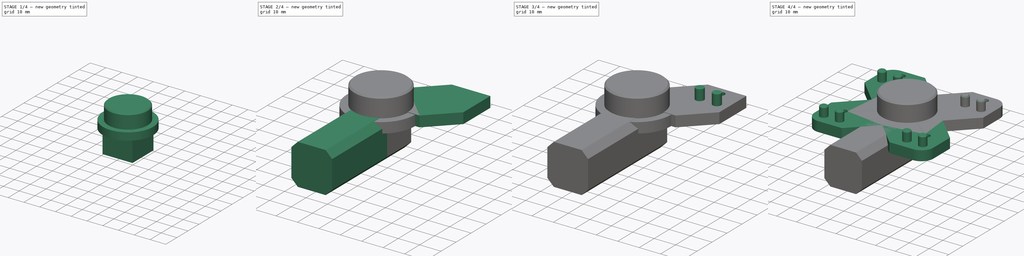
[diagram: build sequence overview — one tinted view per stage of 4, left to right]
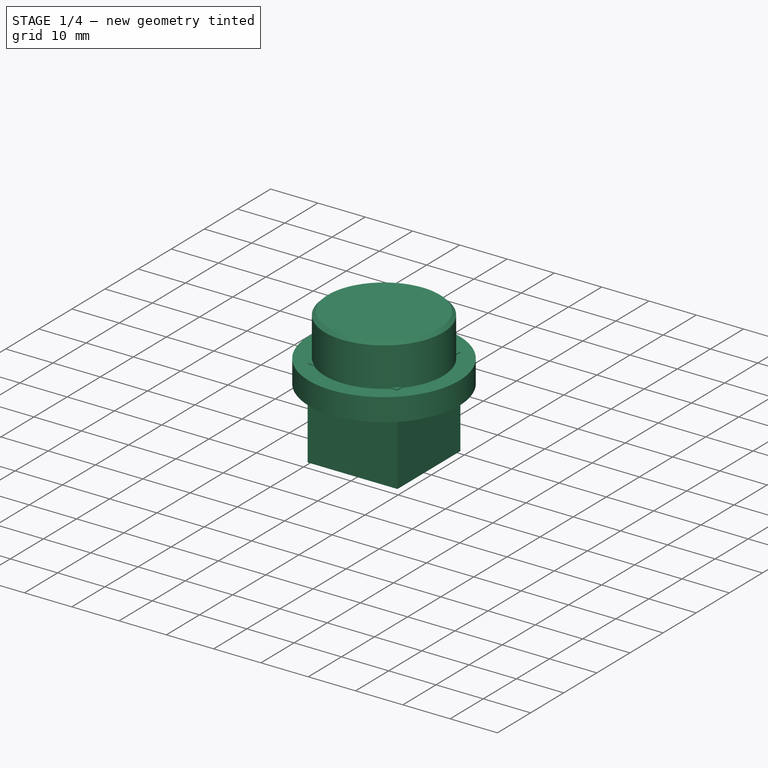
[diagram: stage 1 of 4 — iso view after this stage's code; geometry added in this stage tinted green]
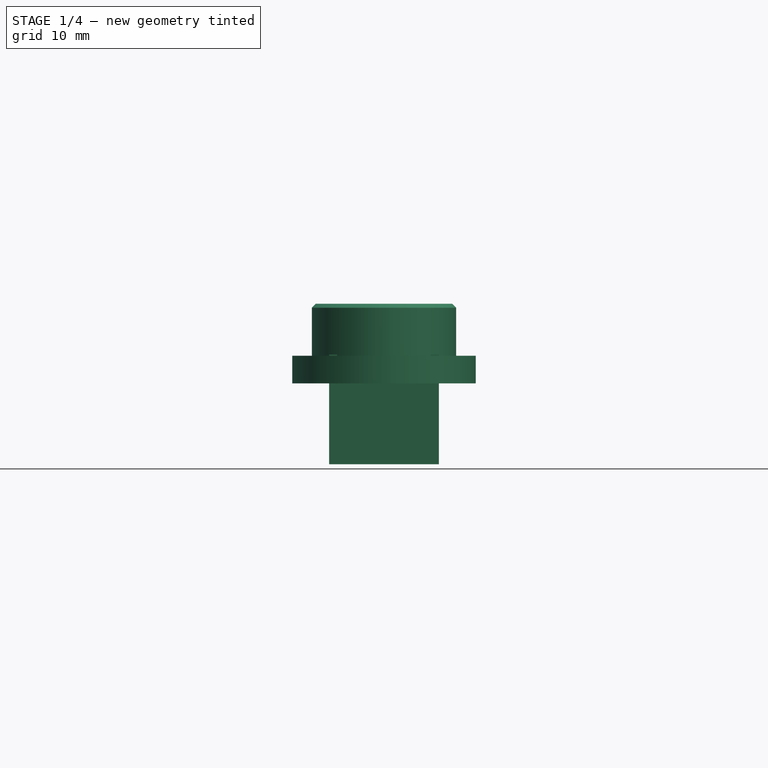
[diagram: stage 1 of 4 — front view after this stage's code; geometry added in this stage tinted green]
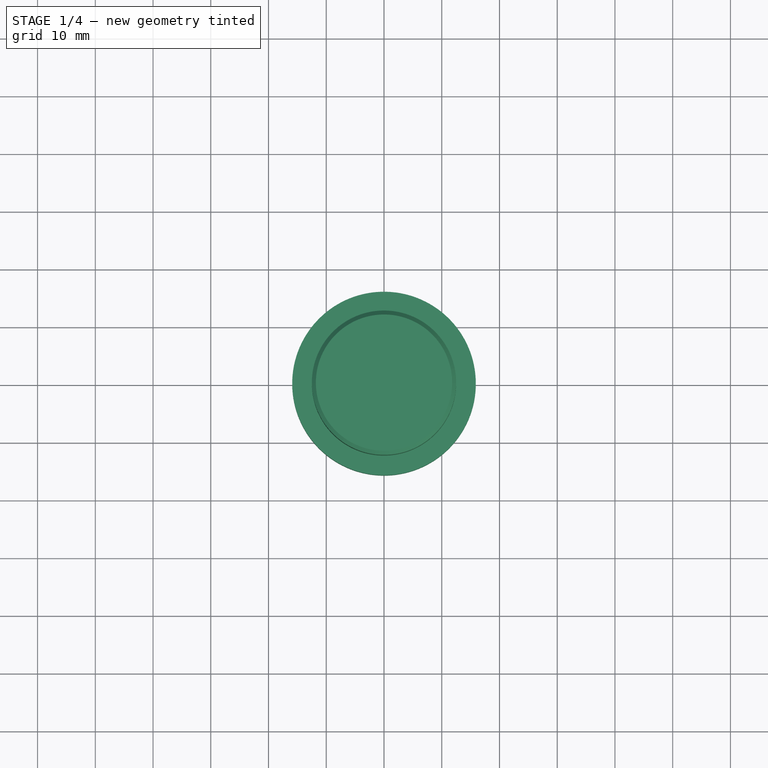
[diagram: stage 1 of 4 — top view after this stage's code; geometry added in this stage tinted green]
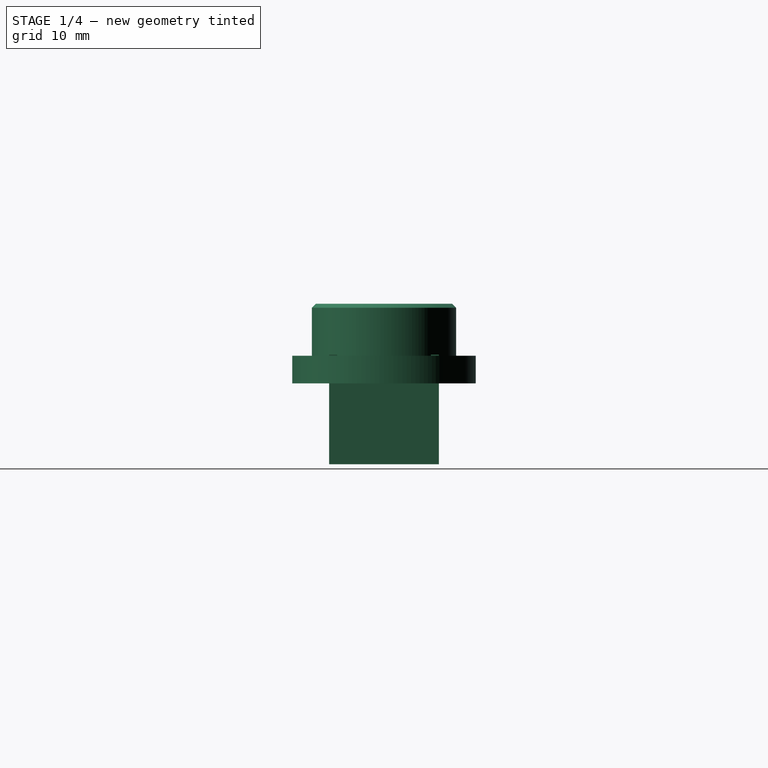
[diagram: stage 1 of 4 — right view after this stage's code; geometry added in this stage tinted green]
FCSTD DOCUMENT  (FreeCAD 0.19R)
Label: quad_cam_connector
License: All rights reserved
LicenseURL: http://en.wikipedia.org/wiki/All_rights_reserved
objects: Sketcher::SketchObject×7, PartDesign::Pad×6, PartDesign::Chamfer×3, PartDesign::Body×3, PartDesign::LinearPattern×2, PartDesign::Hole×1, PartDesign::Pocket×1, PartDesign::Fillet×1, PartDesign::PolarPattern×1, PartDesign::MultiTransform×1
note: 38 computed .brp shape members not serialized (recipe doc carries the construction recipe); baked Part::Feature solids carry a one-line shape summary decoded from their .brp

FEATURE [PartDesign::Body] Body  label="cam_connector"
  Group = -> [Sketch,Pad,Sketch001,Hole,Sketch002,Pocket,Sketch003,Pad001,Chamfer,Fillet,PolarPattern,MultiTransform,LinearPattern,LinearPattern001]
  Origin = -> Origin
  Tip = -> MultiTransform
FEATURE [Sketcher::SketchObject] Sketch005  label="disk_sk"
  FullyConstrained = true
  MapMode = 5
  Support = -> [XY_Plane001]
  sketch-geometry (1):
    g0: Circle CenterX=0 CenterY=0 CenterZ=0 NormalX=0 NormalY=0 NormalZ=1 AngleXU=0 Radius=15.9
  constraints (2):
    c: Coincident(g0,g-1)
    c: Diameter(g0) = 31.8
FEATURE [PartDesign::Pad] Pad003  label="disk"
  Direction = (1,1,1)
  Length = 4.8
  Length2 = 100
  Profile = -> Sketch005
  Type = 0
FEATURE [Sketcher::SketchObject] Sketch004  label="rod_sk"
  FullyConstrained = true
  MapMode = 5
  Placement = pos=(0,0,4.8) rot=(0,0,1;0rad)
  Support = -> [Pad003]
  sketch-geometry (1):
    g0: Circle CenterX=0 CenterY=0 CenterZ=0 NormalX=0 NormalY=0 NormalZ=1 AngleXU=0 Radius=12.5
  constraints (2):
    c: Coincident(g0,g-1)
    c: Diameter(g0) = 25
FEATURE [PartDesign::Pad] Pad002  label="rod"
  BaseFeature = -> Pad003
  Direction = (1,1,1)
  Length = 9
  Length2 = 100
  Profile = -> Sketch004
  Type = 0
FEATURE [Sketcher::SketchObject] Sketch006  label="post_base_sk"
  FullyConstrained = true
  MapMode = 5
  Support = -> [XY_Plane002]
  sketch-geometry (4):
    g0: LineSegment StartX=-9.5 StartY=9.5 StartZ=0 EndX=9.5 EndY=9.5 EndZ=0
    g1: LineSegment StartX=9.5 StartY=9.5 StartZ=0 EndX=9.5 EndY=-9.5 EndZ=0
    g2: LineSegment StartX=9.5 StartY=-9.5 StartZ=0 EndX=-9.5 EndY=-9.5 EndZ=0
    g3: LineSegment StartX=-9.5 StartY=-9.5 StartZ=0 EndX=-9.5 EndY=9.5 EndZ=0
  constraints (11):
    c: Coincident(g0,g1)
    c: Coincident(g1,g2)
    c: Coincident(g2,g3)
    c: Coincident(g3,g0)
    c: Horizontal(g0)
    c: Horizontal(g2)
    c: Vertical(g1)
    c: Vertical(g3)
    c: Distance(g2) = 19
    c: Distance(g3) = 19
    c: Symmetric(g2,g0,g-1)
FEATURE [PartDesign::Pad] Pad004  label="post_base"
  Direction = (1,1,1)
  Length = 5
  Length2 = 14
  Profile = -> Sketch006
  Reversed = true
  Type = 4
FEATURE [PartDesign::Body] Body002  label="post"
  Group = -> [Sketch006,Pad004,Chamfer001,Pad005]
  Origin = -> Origin002
  Tip = -> Pad005
FEATURE [PartDesign::Chamfer] Chamfer002  label="foot_chamfer"
  Angle = 45
  Base = -> Pad002 [Edge6]
  BaseFeature = -> Pad002
  ChamferType = 0
  FlipDirection = false
  Size = 0.7
  Size2 = 1
  SupportTransform = false
FEATURE [PartDesign::Body] Body001  label="foot"
  Group = -> [Sketch005,Pad003,Sketch004,Pad002,Chamfer002]
  Origin = -> Origin001
  Placement = pos=(0,-60,-4.5) rot=(-1,0,0;1.5708rad)
  Tip = -> Chamfer002
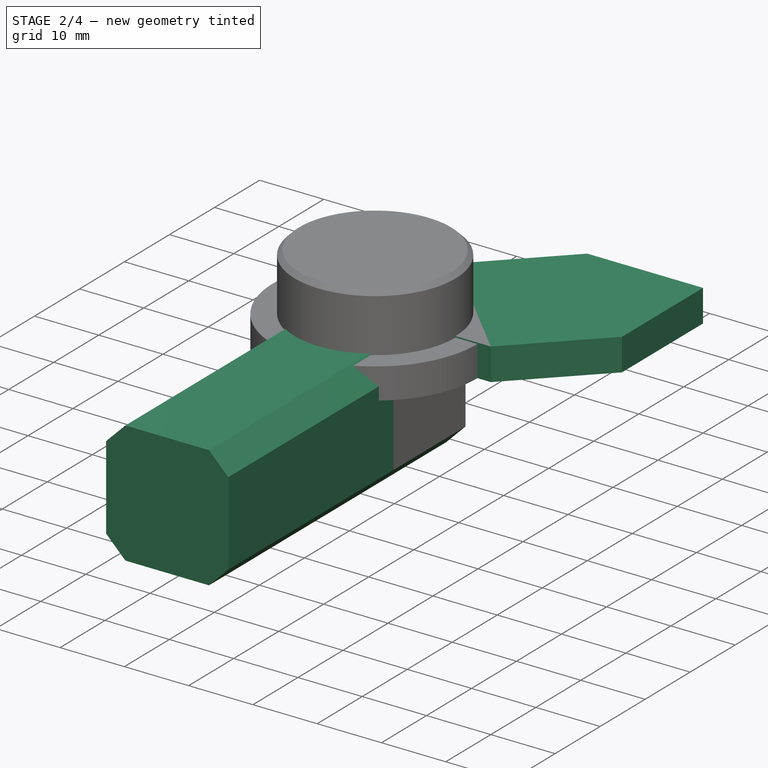
[diagram: stage 2 of 4 — iso view after this stage's code; geometry added in this stage tinted green]
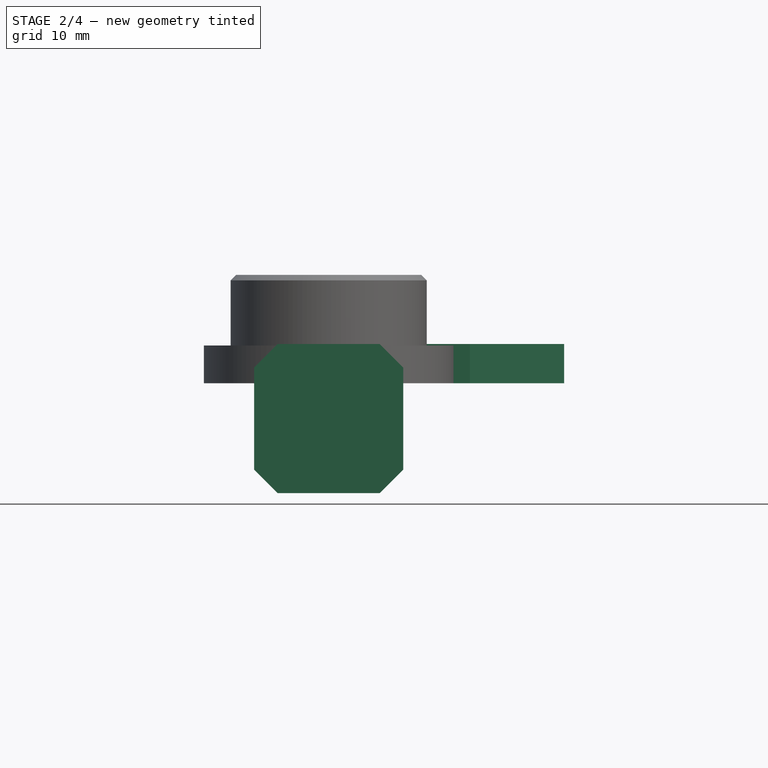
[diagram: stage 2 of 4 — front view after this stage's code; geometry added in this stage tinted green]
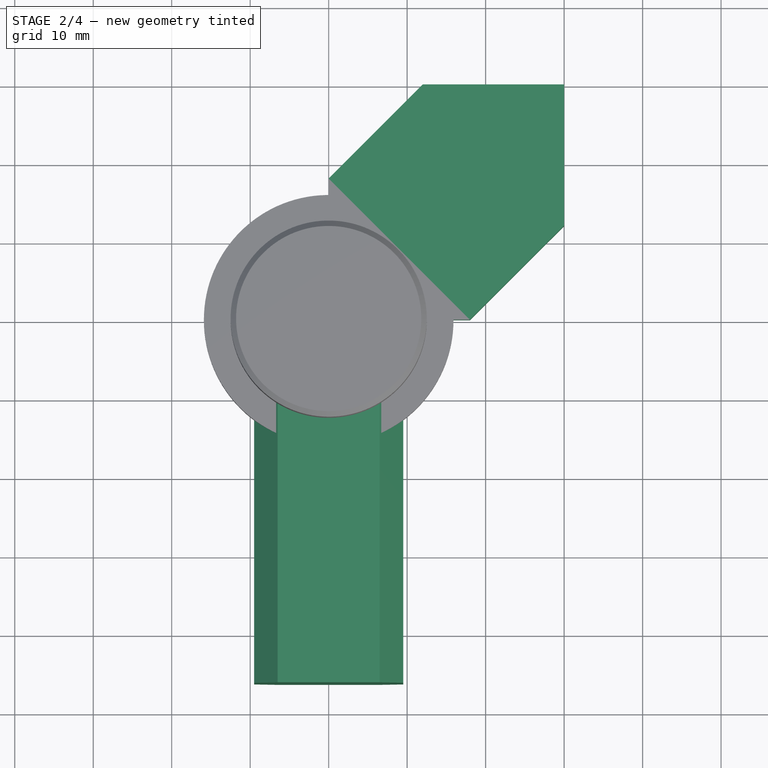
[diagram: stage 2 of 4 — top view after this stage's code; geometry added in this stage tinted green]
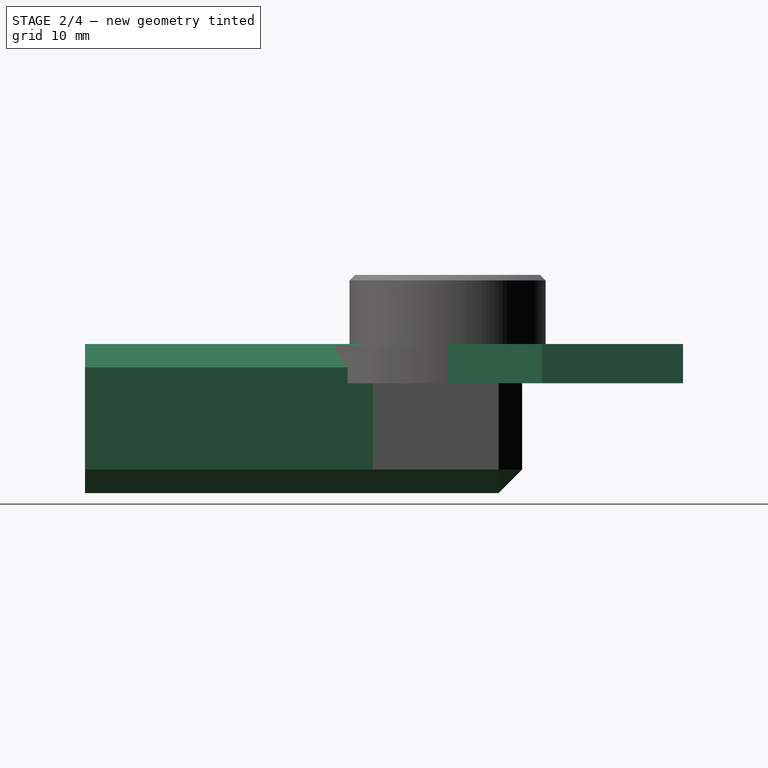
[diagram: stage 2 of 4 — right view after this stage's code; geometry added in this stage tinted green]
FEATURE [Sketcher::SketchObject] Sketch  label="base_sk"
  FullyConstrained = true
  MapMode = 5
  Support = -> [XY_Plane]
  sketch-geometry (6):
    g0: LineSegment StartX=0 StartY=0 StartZ=0 EndX=0 EndY=18 EndZ=0
    g1: LineSegment StartX=0 StartY=18 StartZ=0 EndX=12 EndY=30 EndZ=0
    g2: LineSegment StartX=12 StartY=30 StartZ=0 EndX=30 EndY=30 EndZ=0
    g3: LineSegment StartX=30 StartY=30 StartZ=0 EndX=30 EndY=12 EndZ=0
    g4: LineSegment StartX=30 StartY=12 StartZ=0 EndX=18 EndY=0 EndZ=0
    g5: LineSegment StartX=18 StartY=0 StartZ=0 EndX=0 EndY=0 EndZ=0
  constraints (17):
    c: Coincident(g-1,g0)
    c: PointOnObject(g0,g-2)
    c: Coincident(g0,g1)
    c: Coincident(g1,g2)
    c: Horizontal(g2)
    c: Coincident(g2,g3)
    c: Vertical(g3)
    c: Coincident(g3,g4)
    c: PointOnObject(g4,g-1)
    c: Coincident(g4,g5)
    c: Coincident(g5,g0)
    c: Equal(g2,g3)
    c: Equal(g3,g5)
    c: Equal(g5,g0)
    c: Angle(g4,g-1) = 2.35619
    c: Distance(g5) = 18
    c: DistanceX(g-2,g2) = 30
FEATURE [PartDesign::Pad] Pad  label="base"
  Direction = (1,1,1)
  Length = 5
  Length2 = 100
  Profile = -> Sketch
  Type = 0
FEATURE [PartDesign::Chamfer] Chamfer001  label="post_base_chamfer"
  Angle = 45
  Base = -> Pad004 [Edge2,Edge1,Edge3,Edge11,Edge6,Edge12,Edge7]
  BaseFeature = -> Pad004
  ChamferType = 0
  FlipDirection = false
  Size = 3
  Size2 = 1
  SupportTransform = false
FEATURE [PartDesign::Pad] Pad005  label="extender"
  BaseFeature = -> Chamfer001
  Direction = (1,1,1)
  Length = 36.7
  Length2 = 100
  Profile = -> Chamfer001 [Face8]
  Type = 0
  expr: Length = 60 - 19 / 2 - 13.8
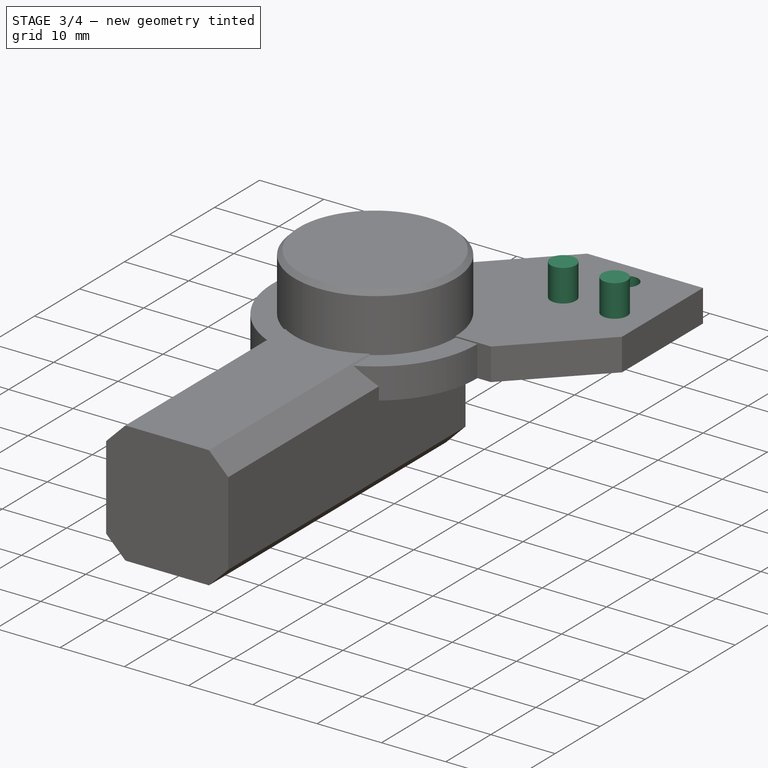
[diagram: stage 3 of 4 — iso view after this stage's code; geometry added in this stage tinted green]
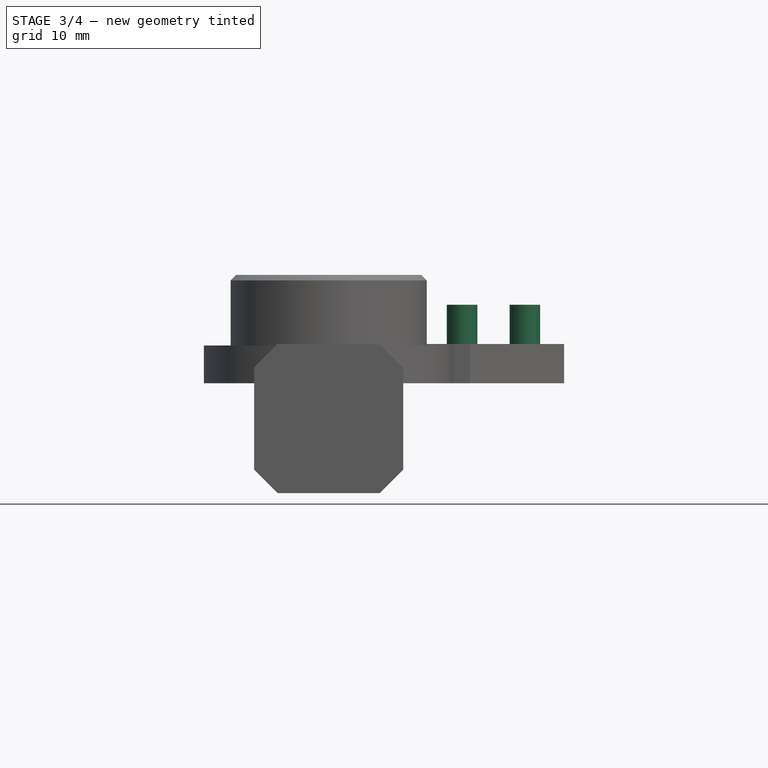
[diagram: stage 3 of 4 — front view after this stage's code; geometry added in this stage tinted green]
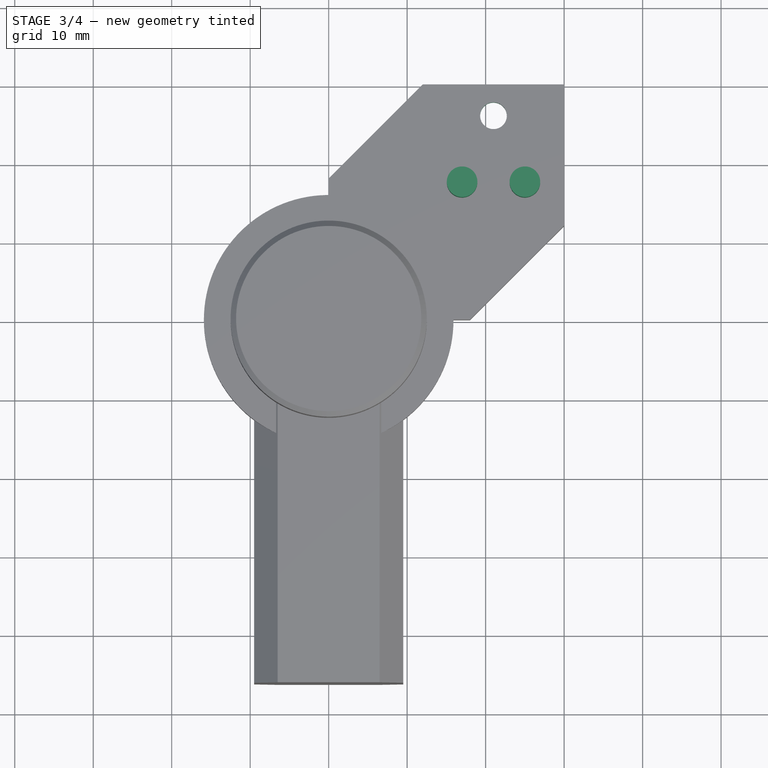
[diagram: stage 3 of 4 — top view after this stage's code; geometry added in this stage tinted green]
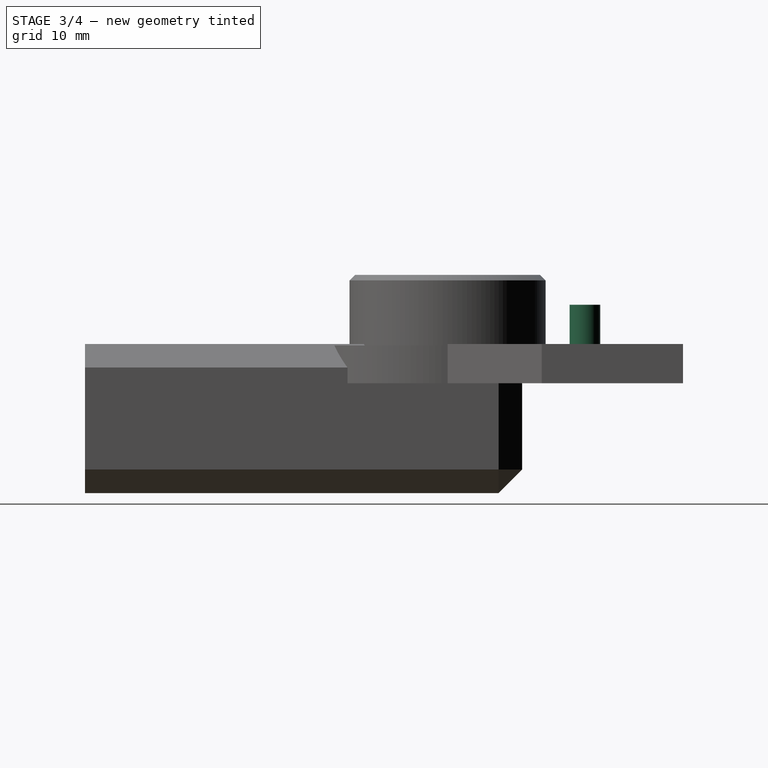
[diagram: stage 3 of 4 — right view after this stage's code; geometry added in this stage tinted green]
FEATURE [Sketcher::SketchObject] Sketch001  label="M3_hole_sk"
  FullyConstrained = true
  MapMode = 5
  Placement = pos=(0,0,5) rot=(0,0,1;0rad)
  Support = -> [Pad]
  sketch-geometry (2):
    g0: GeomPoint X=21 Y=21 Z=0
    g1: Circle CenterX=21 CenterY=26 CenterZ=0 NormalX=0 NormalY=0 NormalZ=1 AngleXU=0 Radius=1
  constraints (5):
    c: DistanceX(g-1,g0) = 21
    c: DistanceY(g-1,g0) = 21
    c: DistanceY(g0,g1) = 5
    c: Vertical(g0,g1)
    c: Radius(g1) = 1
FEATURE [PartDesign::Hole] Hole  label="M3_hole"
  BaseFeature = -> Pad
  Depth = 25
  DepthType = 1
  Diameter = 3.4
  DrillForDepth = false
  DrillPoint = 1
  DrillPointAngle = 118
  HoleCutCountersinkAngle = 90
  HoleCutCustomValues = false
  HoleCutDepth = 0
  HoleCutDiameter = 6.1
  HoleCutType = 0
  ModelActualThread = false
  Profile = -> Sketch001
  Tapered = false
  TaperedAngle = 90
  ThreadAngle = 0
  ThreadClass = 0
  ThreadCutOffInner = 0
  ThreadCutOffOuter = 0
  ThreadDirection = 0
  ThreadFit = 0
  ThreadPitch = 0
  ThreadSize = 9
  ThreadType = 1
  Threaded = false
FEATURE [Sketcher::SketchObject] Sketch002  label="M3_hex_sk"
  ExternalGeometry = -> [Hole]
  FullyConstrained = true
  MapMode = 5
  Placement = pos=(0,0,0) rot=(1,0,0;3.14159rad)
  Support = -> [Hole]
  sketch-geometry (7):
    g0: LineSegment StartX=24.3486 StartY=-26 StartZ=0 EndX=22.6743 EndY=-23.1 EndZ=0
    g1: LineSegment StartX=22.6743 StartY=-23.1 StartZ=0 EndX=19.3257 EndY=-23.1 EndZ=0
    g2: LineSegment StartX=19.3257 StartY=-23.1 StartZ=0 EndX=17.6514 EndY=-26 EndZ=0
    g3: LineSegment StartX=17.6514 StartY=-26 StartZ=0 EndX=19.3257 EndY=-28.9 EndZ=0
    g4: LineSegment StartX=19.3257 StartY=-28.9 StartZ=0 EndX=22.6743 EndY=-28.9 EndZ=0
    g5: LineSegment StartX=22.6743 StartY=-28.9 StartZ=0 EndX=24.3486 EndY=-26 EndZ=0
    g6: Circle CenterX=21 CenterY=-26 CenterZ=0 NormalX=0 NormalY=0 NormalZ=1 AngleXU=0 Radius=3.34863
  constraints (16):
    c: Coincident(g0,g1)
    c: Coincident(g1,g2)
    c: Coincident(g2,g3)
    c: Coincident(g3,g4)
    c: Coincident(g4,g5)
    c: Coincident(g5,g0)
    c: Equal(g0, g1-g5) x5
    c: PointOnObject(g0,g6)
    c: PointOnObject(g1,g6)
    c: PointOnObject(g2,g6)
    c: PointOnObject(g3,g6)
    c: PointOnObject(g4,g6)
    c: PointOnObject(g5,g6)
    c: Coincident(g6,g-3)
    c: Horizontal(g0,g6)
    c: Distance(g0,g4) = 5.8
FEATURE [PartDesign::Pocket] Pocket  label="M3_hex"
  BaseFeature = -> Hole
  Length = 2.15
  Length2 = 100
  Profile = -> Sketch002
  Type = 0
FEATURE [Sketcher::SketchObject] Sketch003  label="dual_dowel_pin_sk"
  ExternalGeometry = -> [Pocket]
  FullyConstrained = true
  MapMode = 5
  Placement = pos=(0,0,5) rot=(0,0,1;0rad)
  Support = -> [Pocket]
  sketch-geometry (3):
    g0: Circle CenterX=17 CenterY=17.5 CenterZ=0 NormalX=0 NormalY=0 NormalZ=1 AngleXU=0 Radius=1.95
    g1: LineSegment StartX=21 StartY=26 StartZ=0 EndX=21 EndY=6 EndZ=0
    g2: Circle CenterX=25 CenterY=17.5 CenterZ=0 NormalX=0 NormalY=0 NormalZ=1 AngleXU=0 Radius=1.95
  constraints (8):
    c: DistanceY(g0,g-3) = 8.5
    c: Radius(g0) = 1.95
    c: DistanceX(g0,g-3) = 4
    c: Coincident(g1,g-3)
    c: Vertical(g1)
    c: Symmetric(g2,g0,g1)
    c: Equal(g2,g0)
    c: DistanceY(g1,g1) = 20
FEATURE [PartDesign::Pad] Pad001  label="dual_dowel_pin"
  BaseFeature = -> Pocket
  Direction = (1,1,1)
  Length = 5
  Length2 = 100
  Profile = -> Sketch003
  Type = 0
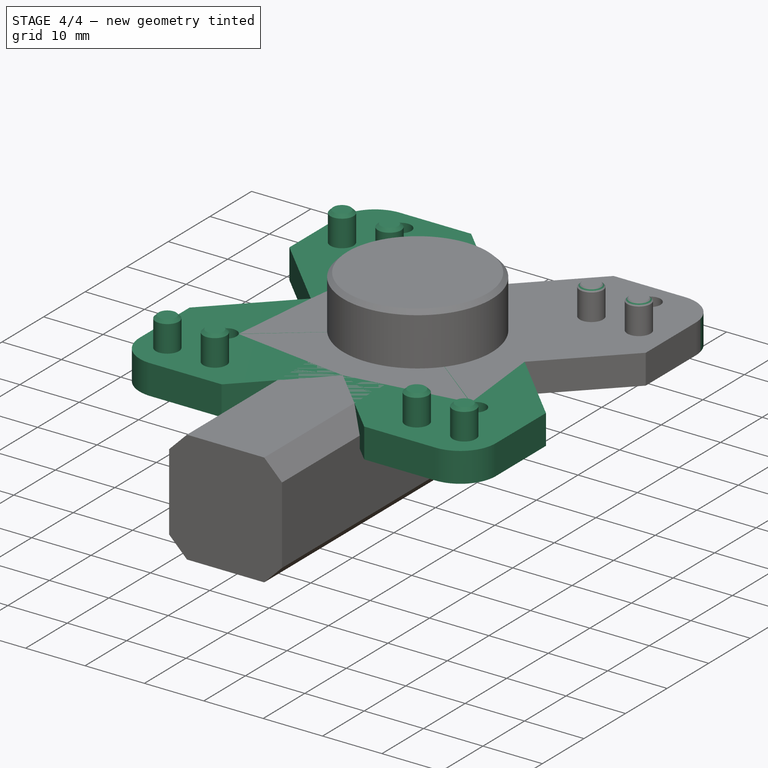
[diagram: stage 4 of 4 — iso view after this stage's code; geometry added in this stage tinted green]
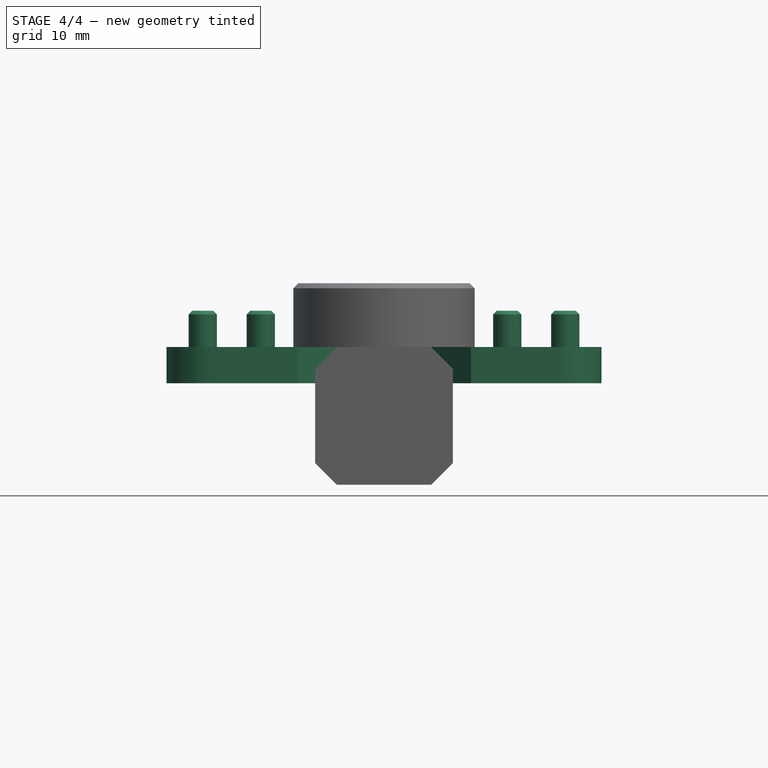
[diagram: stage 4 of 4 — front view after this stage's code; geometry added in this stage tinted green]
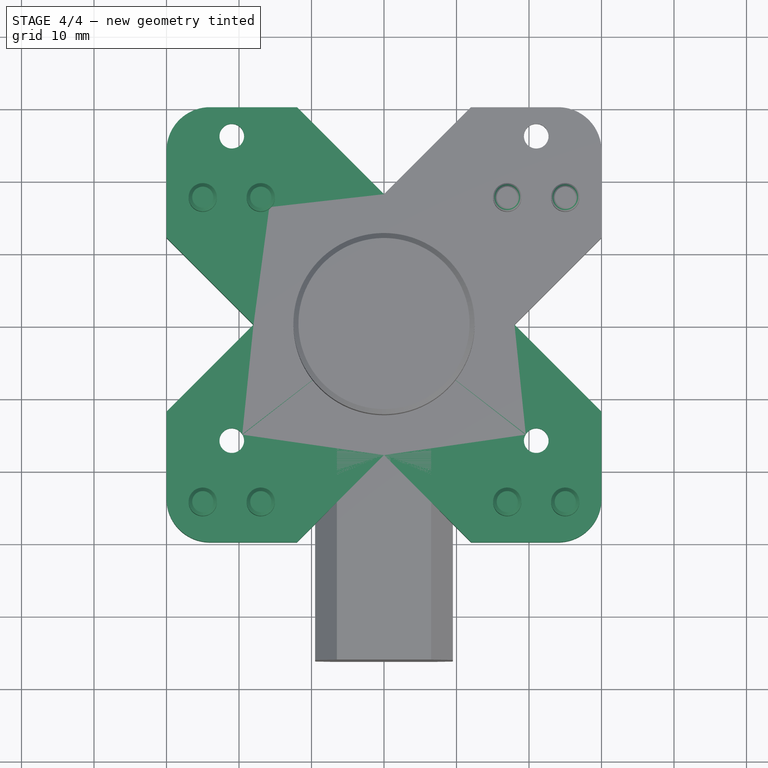
[diagram: stage 4 of 4 — top view after this stage's code; geometry added in this stage tinted green]
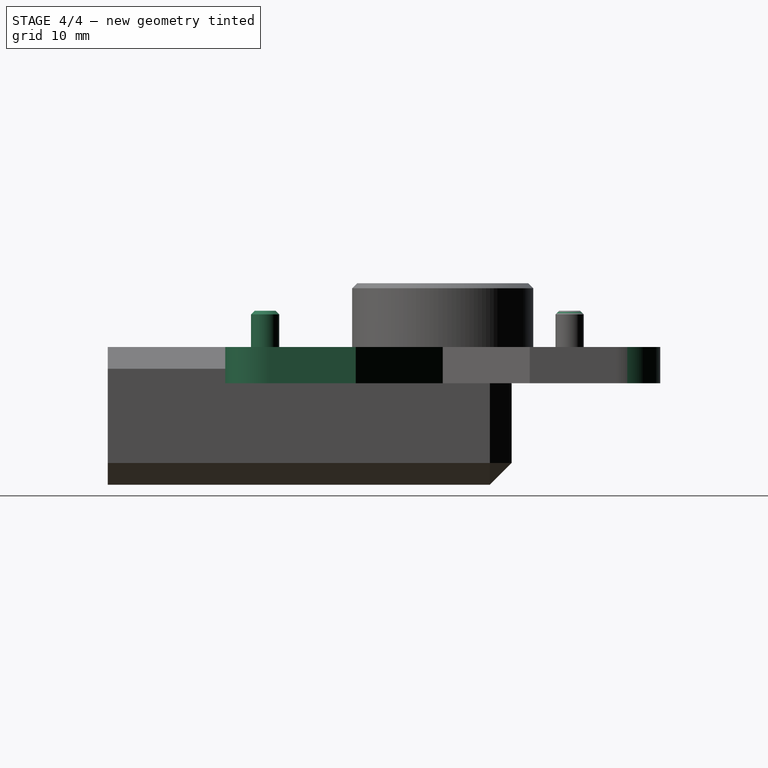
[diagram: stage 4 of 4 — right view after this stage's code; geometry added in this stage tinted green]
FEATURE [PartDesign::Chamfer] Chamfer  label="dowel_pin_chamfer"
  Angle = 45
  Base = -> Pad001 [Edge43,Edge41]
  BaseFeature = -> Pad001
  ChamferType = 0
  FlipDirection = false
  Size = 0.5
  Size2 = 1
  SupportTransform = false
FEATURE [PartDesign::Fillet] Fillet  label="base_fillet"
  Base = -> Chamfer [Edge23]
  BaseFeature = -> Chamfer
  Radius = 6
  SupportTransform = false
FEATURE [PartDesign::PolarPattern] PolarPattern  label="quad_base"
  Angle = 360
  Axis = -> Sketch [N_Axis]
  BaseFeature = -> Fillet
  Occurrences = 4
  Originals = -> [Pad,Fillet]
FEATURE [PartDesign::LinearPattern] LinearPattern
  Direction = -> X_Axis
  Length = 42
  Occurrences = 2
  Reversed = true
FEATURE [PartDesign::LinearPattern] LinearPattern001
  Direction = -> Y_Axis
  Length = 42
  Occurrences = 2
  Reversed = true
FEATURE [PartDesign::MultiTransform] MultiTransform  label="quad_connector"
  BaseFeature = -> PolarPattern
  Originals = -> [Hole,Pocket,Pad001,Chamfer]
  Transformations = -> [LinearPattern,LinearPattern001]
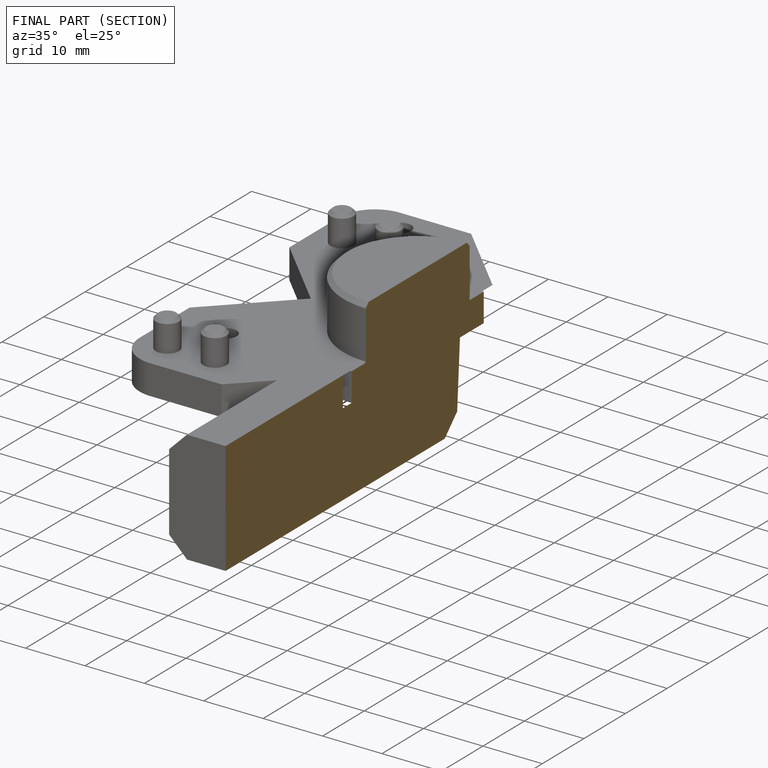
[diagram: finished part — half-section view (interior)]
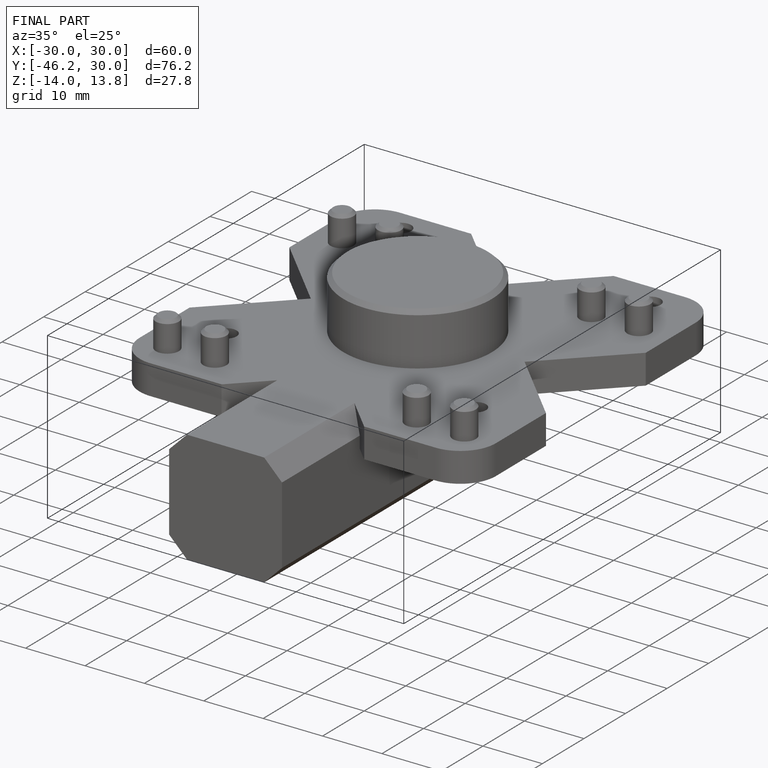
[diagram: finished part — iso view with bounding-box wireframe]
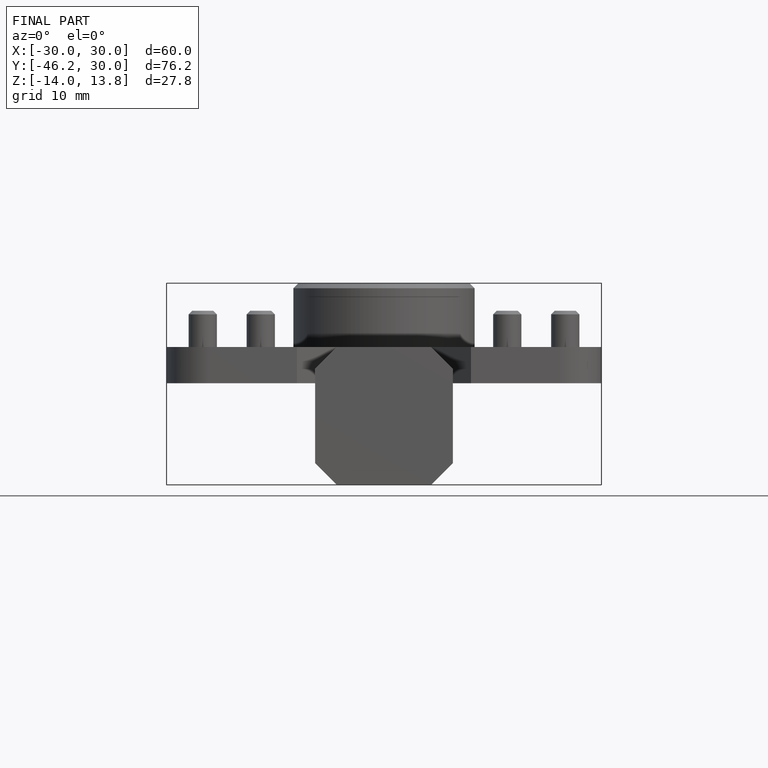
[diagram: finished part — front view with bounding-box wireframe]
